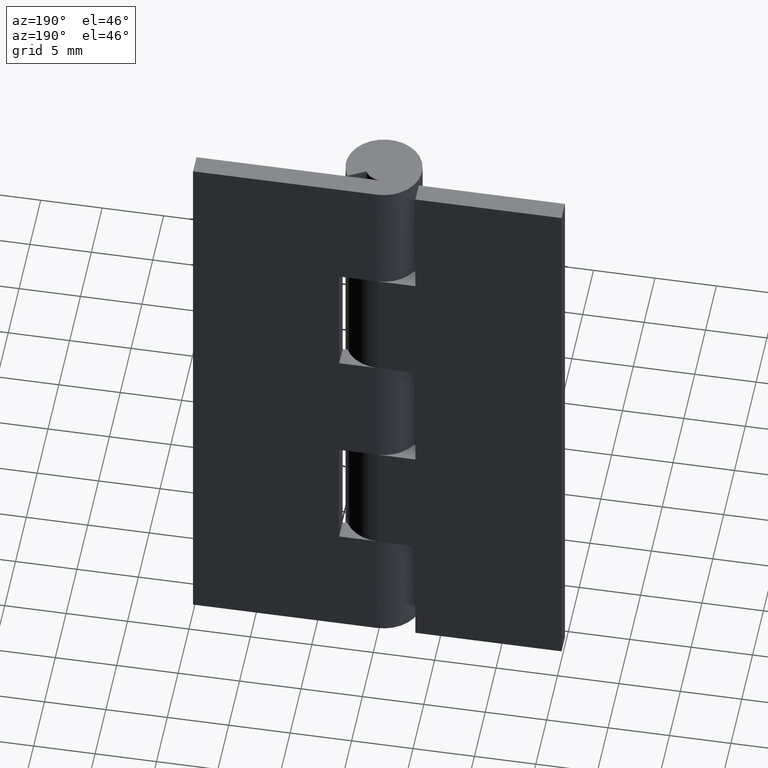
[diagram: clean part render]
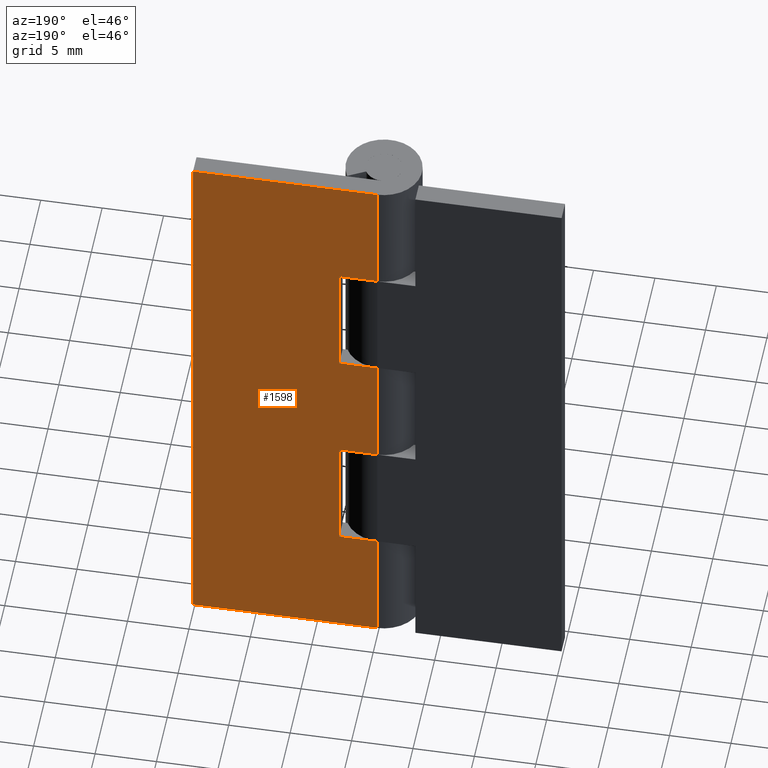
[diagram: same view with one face highlighted and labeled with its STEP entity id]
A machine part, auxiliary view. The second image highlights one B-rep face of the part: STEP entity #1598.
In plain terms, the highlighted face is a freeform B-spline surface patch.
Its self-contained STEP definition (entity closure, byte-faithful):
#768=CARTESIAN_POINT('',(0.003521362805221,3.099998000000050,20.0));
#769=VERTEX_POINT('',#768);
#775=CARTESIAN_POINT('',(3.099998999999895,3.099998000000050,20.0));
#776=VERTEX_POINT('',#775);
#777=CARTESIAN_POINT('',(0.003521362805221,3.099998000000050,20.0));
#778=CARTESIAN_POINT('',(3.099998999999895,3.099998000000050,20.0));
#779=QUASI_UNIFORM_CURVE('',1,(#777,#778),.UNSPECIFIED.,.F.,.U.);
#780=EDGE_CURVE('',#769,#776,#779,.T.);
#909=CARTESIAN_POINT('',(3.099998999999895,3.099998000000050,10.000000000000121));
#910=VERTEX_POINT('',#909);
#916=CARTESIAN_POINT('',(0.003521362805221,3.099998000000050,10.000000000000121));
#917=VERTEX_POINT('',#916);
#918=CARTESIAN_POINT('',(3.099998999999895,3.099998000000050,10.000000000000121));
#919=CARTESIAN_POINT('',(0.003521362805221,3.099998000000050,10.000000000000121));
#920=QUASI_UNIFORM_CURVE('',1,(#918,#919),.UNSPECIFIED.,.F.,.U.);
#921=EDGE_CURVE('',#910,#917,#920,.T.);
#942=CARTESIAN_POINT('',(3.099998999999895,3.099998000000050,20.0));
#943=CARTESIAN_POINT('',(3.099998999999895,3.099998000000050,10.000000000000121));
#944=QUASI_UNIFORM_CURVE('',1,(#942,#943),.UNSPECIFIED.,.F.,.U.);
#945=EDGE_CURVE('',#776,#910,#944,.T.);
#1014=CARTESIAN_POINT('',(3.099998999999895,3.099998000000050,29.999993000000099));
#1015=VERTEX_POINT('',#1014);
#1021=CARTESIAN_POINT('',(0.003521362805221,3.099998000000050,29.999993000000099));
#1022=VERTEX_POINT('',#1021);
#1023=CARTESIAN_POINT('',(0.003521362805221,3.099998000000050,29.999993000000099));
#1024=CARTESIAN_POINT('',(3.099998999999895,3.099998000000050,29.999993000000099));
#1025=QUASI_UNIFORM_CURVE('',1,(#1023,#1024),.UNSPECIFIED.,.F.,.U.);
#1026=EDGE_CURVE('',#1022,#1015,#1025,.T.);
#1041=CARTESIAN_POINT('',(0.003521362805221,3.099998000000050,39.999992999999897));
#1042=VERTEX_POINT('',#1041);
#1050=CARTESIAN_POINT('',(3.099998999999895,3.099998000000050,39.999992999999897));
#1051=VERTEX_POINT('',#1050);
#1052=CARTESIAN_POINT('',(3.099998999999895,3.099998000000050,39.999992999999897));
#1053=CARTESIAN_POINT('',(0.003521362805221,3.099998000000050,39.999992999999897));
#1054=QUASI_UNIFORM_CURVE('',1,(#1052,#1053),.UNSPECIFIED.,.F.,.U.);
#1055=EDGE_CURVE('',#1051,#1042,#1054,.T.);
#1132=CARTESIAN_POINT('',(3.099998999999895,3.099998000000050,29.999993000000099));
#1133=CARTESIAN_POINT('',(3.099998999999895,3.099998000000050,39.999992999999897));
#1134=QUASI_UNIFORM_CURVE('',1,(#1132,#1133),.UNSPECIFIED.,.F.,.U.);
#1135=EDGE_CURVE('',#1015,#1051,#1134,.T.);
#1183=CARTESIAN_POINT('',(0.003521362805222,3.099998000000000,0.0));
#1184=VERTEX_POINT('',#1183);
#1204=CARTESIAN_POINT('',(15.000007999999999,3.099998000000000,0.0));
#1205=VERTEX_POINT('',#1204);
#1206=CARTESIAN_POINT('',(15.000007999999999,3.099998000000000,0.0));
#1207=CARTESIAN_POINT('',(0.003521362805222,3.099998000000000,0.0));
#1208=QUASI_UNIFORM_CURVE('',1,(#1206,#1207),.UNSPECIFIED.,.F.,.U.);
#1209=EDGE_CURVE('',#1205,#1184,#1208,.T.);
#1233=CARTESIAN_POINT('',(15.000007999999999,3.099998000000000,49.999993000000003));
#1234=VERTEX_POINT('',#1233);
#1240=CARTESIAN_POINT('',(0.003521362805222,3.099998000000000,49.999993000000003));
#1241=VERTEX_POINT('',#1240);
#1242=CARTESIAN_POINT('',(15.000007999999999,3.099998000000000,49.999993000000003));
#1243=CARTESIAN_POINT('',(0.003521362805222,3.099998000000000,49.999993000000003));
#1244=QUASI_UNIFORM_CURVE('',1,(#1242,#1243),.UNSPECIFIED.,.F.,.U.);
#1245=EDGE_CURVE('',#1234,#1241,#1244,.T.);
#1303=CARTESIAN_POINT('',(15.000007999999999,3.099998000000000,49.999993000000003));
#1304=CARTESIAN_POINT('',(15.000007999999999,3.099998000000000,0.0));
#1305=QUASI_UNIFORM_CURVE('',1,(#1303,#1304),.UNSPECIFIED.,.F.,.U.);
#1306=EDGE_CURVE('',#1234,#1205,#1305,.T.);
#1395=CARTESIAN_POINT('',(0.003521362805222,3.099998000000000,49.999993000000003));
#1396=CARTESIAN_POINT('',(0.003521362805221,3.099998000000050,39.999992999999897));
#1397=QUASI_UNIFORM_CURVE('',1,(#1395,#1396),.UNSPECIFIED.,.F.,.U.);
#1398=EDGE_CURVE('',#1241,#1042,#1397,.T.);
#1536=CARTESIAN_POINT('',(0.003521362805221,3.099998000000050,29.999993000000099));
#1537=CARTESIAN_POINT('',(0.003521362805221,3.099998000000050,20.0));
#1538=QUASI_UNIFORM_CURVE('',1,(#1536,#1537),.UNSPECIFIED.,.F.,.U.);
#1539=EDGE_CURVE('',#1022,#769,#1538,.T.);
#1569=CARTESIAN_POINT('',(0.003521362805221,3.099998000000050,10.000000000000121));
#1570=CARTESIAN_POINT('',(0.003521362805222,3.099998000000000,0.0));
#1571=QUASI_UNIFORM_CURVE('',1,(#1569,#1570),.UNSPECIFIED.,.F.,.U.);
#1572=EDGE_CURVE('',#917,#1184,#1571,.T.);
#1579=CARTESIAN_POINT('',(-0.745553062078572,3.099998000000000,52.497492084076157));
#1580=CARTESIAN_POINT('',(-0.745553062078572,3.099998000000000,-2.497500872215239));
#1581=CARTESIAN_POINT('',(15.749081754488611,3.099998000000000,52.497492084076157));
#1582=CARTESIAN_POINT('',(15.749081754488611,3.099998000000000,-2.497500872215239));
#1583=B_SPLINE_SURFACE_WITH_KNOTS('',1,1,((#1579,#1581),(#1580,#1582)),.UNSPECIFIED.,.F.,.F.,.U.,(2,2),(2,2),(0.0,54.994992956291398),(0.0,16.494634816567181),.UNSPECIFIED.);
#1584=ORIENTED_EDGE('',*,*,#921,.F.);
#1585=ORIENTED_EDGE('',*,*,#945,.F.);
#1586=ORIENTED_EDGE('',*,*,#780,.F.);
#1587=ORIENTED_EDGE('',*,*,#1539,.F.);
#1588=ORIENTED_EDGE('',*,*,#1026,.T.);
#1589=ORIENTED_EDGE('',*,*,#1135,.T.);
#1590=ORIENTED_EDGE('',*,*,#1055,.T.);
#1591=ORIENTED_EDGE('',*,*,#1398,.F.);
#1592=ORIENTED_EDGE('',*,*,#1245,.F.);
#1593=ORIENTED_EDGE('',*,*,#1306,.T.);
#1594=ORIENTED_EDGE('',*,*,#1209,.T.);
#1595=ORIENTED_EDGE('',*,*,#1572,.F.);
#1596=EDGE_LOOP('',(#1584,#1585,#1586,#1587,#1588,#1589,#1590,#1591,#1592,#1593,#1594,#1595));
#1597=FACE_OUTER_BOUND('',#1596,.T.);
#1598=ADVANCED_FACE('',(#1597),#1583,.F.);